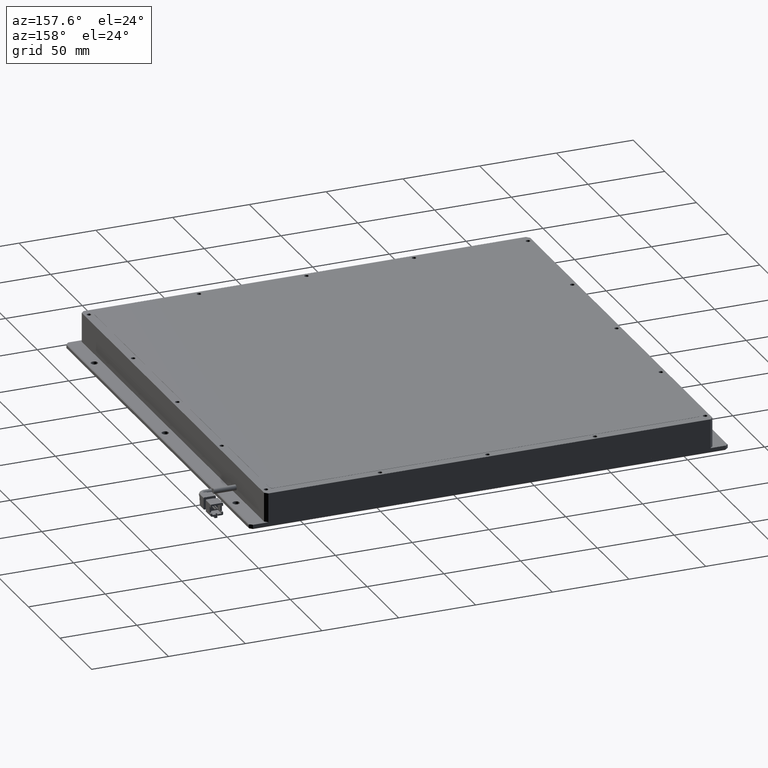
[diagram: clean part render]
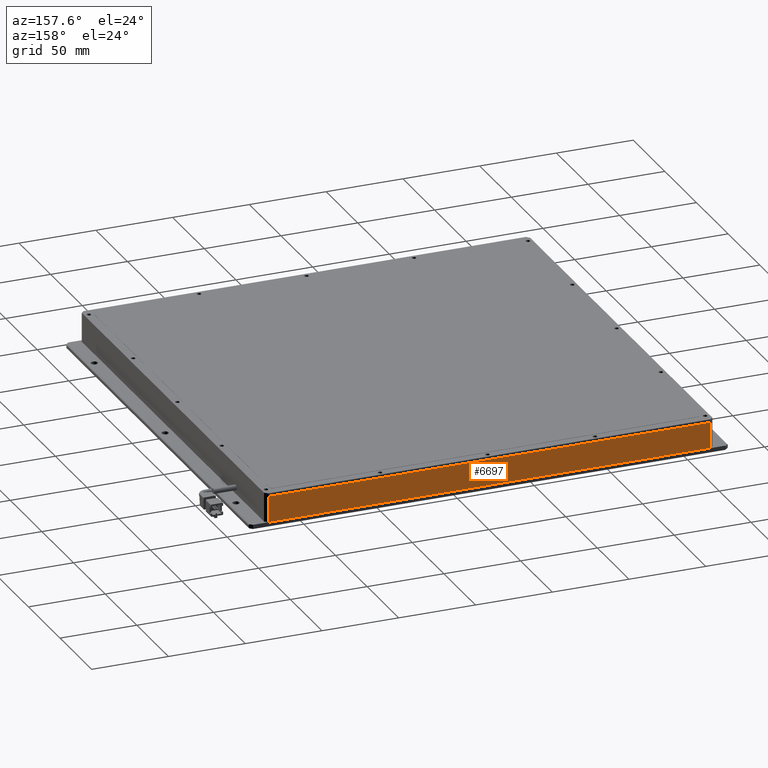
[diagram: same view with one face highlighted and labeled with its STEP entity id]
A machine part, auxiliary view. The second image highlights one B-rep face of the part: STEP entity #6697.
In plain terms, the highlighted planar face has unit normal (0, -1, 0).
Its self-contained STEP definition (entity closure, byte-faithful):
#371 = CARTESIAN_POINT ( 'NONE',  ( 176.9193228736581900, 159.2698045692267500, 8.499999999971805700 ) ) ;
#867 = DIRECTION ( 'NONE',  ( 0.0000000000000000000, -0.0000000000000000000, -1.000000000000000000 ) ) ;
#1086 = DIRECTION ( 'NONE',  ( -1.000000000000000000, -0.0000000000000000000, 0.0000000000000000000 ) ) ;
#1193 = ORIENTED_EDGE ( 'NONE', *, *, #20424, .F. ) ;
#1268 = CARTESIAN_POINT ( 'NONE',  ( -113.0806771263418400, 159.2698045692267500, 8.499999999971805700 ) ) ;
#3869 = VERTEX_POINT ( 'NONE', #14382 ) ;
#5720 = DIRECTION ( 'NONE',  ( 1.000000000000000000, 0.0000000000000000000, 0.0000000000000000000 ) ) ;
#6205 = ORIENTED_EDGE ( 'NONE', *, *, #19305, .F. ) ;
#6697 = ADVANCED_FACE ( 'NONE', ( #18415 ), #7715, .F. ) ;
#7278 = LINE ( 'NONE', #13899, #23753 ) ;
#7715 = PLANE ( 'NONE',  #17234 ) ;
#7891 = EDGE_LOOP ( 'NONE', ( #15351, #19286, #1193, #6205 ) ) ;
#8102 = CARTESIAN_POINT ( 'NONE',  ( -111.0806771263418700, 159.2698045692267500, -8.500000000028197900 ) ) ;
#8700 = LINE ( 'NONE', #11117, #25191 ) ;
#9383 = VECTOR ( 'NONE', #5720, 1000.000000000000000 ) ;
#10998 = DIRECTION ( 'NONE',  ( -0.0000000000000000000, 0.0000000000000000000, 1.000000000000000000 ) ) ;
#11117 = CARTESIAN_POINT ( 'NONE',  ( -111.0806771263418400, 159.2698045692267500, 8.499999999971805700 ) ) ;
#11353 = VERTEX_POINT ( 'NONE', #8102 ) ;
#13899 = CARTESIAN_POINT ( 'NONE',  ( -113.0806771263418400, 159.2698045692266900, 8.499999999971805700 ) ) ;
#14382 = CARTESIAN_POINT ( 'NONE',  ( -111.0806771263418400, 159.2698045692267500, 8.499999999971805700 ) ) ;
#15351 = ORIENTED_EDGE ( 'NONE', *, *, #27344, .F. ) ;
#15386 = EDGE_CURVE ( 'NONE', #11353, #3869, #8700, .T. ) ;
#17046 = DIRECTION ( 'NONE',  ( 0.0000000000000000000, -1.000000000000000000, 0.0000000000000000000 ) ) ;
#17234 = AXIS2_PLACEMENT_3D ( 'NONE', #1268, #17046, #867 ) ;
#17496 = CARTESIAN_POINT ( 'NONE',  ( 176.9193228736581900, 159.2698045692267500, 8.499999999971805700 ) ) ;
#18415 = FACE_OUTER_BOUND ( 'NONE', #7891, .T. ) ;
#18713 = CARTESIAN_POINT ( 'NONE',  ( -113.0806771263418400, 159.2698045692267500, -8.500000000028197900 ) ) ;
#19286 = ORIENTED_EDGE ( 'NONE', *, *, #15386, .T. ) ;
#19305 = EDGE_CURVE ( 'NONE', #24488, #22295, #26915, .T. ) ;
#20424 = EDGE_CURVE ( 'NONE', #22295, #3869, #7278, .T. ) ;
#20508 = VECTOR ( 'NONE', #10998, 1000.000000000000000 ) ;
#22295 = VERTEX_POINT ( 'NONE', #371 ) ;
#22518 = CARTESIAN_POINT ( 'NONE',  ( 176.9193228736581300, 159.2698045692267500, -8.500000000028194300 ) ) ;
#23753 = VECTOR ( 'NONE', #1086, 1000.000000000000000 ) ;
#24488 = VERTEX_POINT ( 'NONE', #22518 ) ;
#25191 = VECTOR ( 'NONE', #26148, 1000.000000000000000 ) ;
#25847 = LINE ( 'NONE', #18713, #9383 ) ;
#26148 = DIRECTION ( 'NONE',  ( -0.0000000000000000000, 0.0000000000000000000, 1.000000000000000000 ) ) ;
#26915 = LINE ( 'NONE', #17496, #20508 ) ;
#27344 = EDGE_CURVE ( 'NONE', #11353, #24488, #25847, .T. ) ;